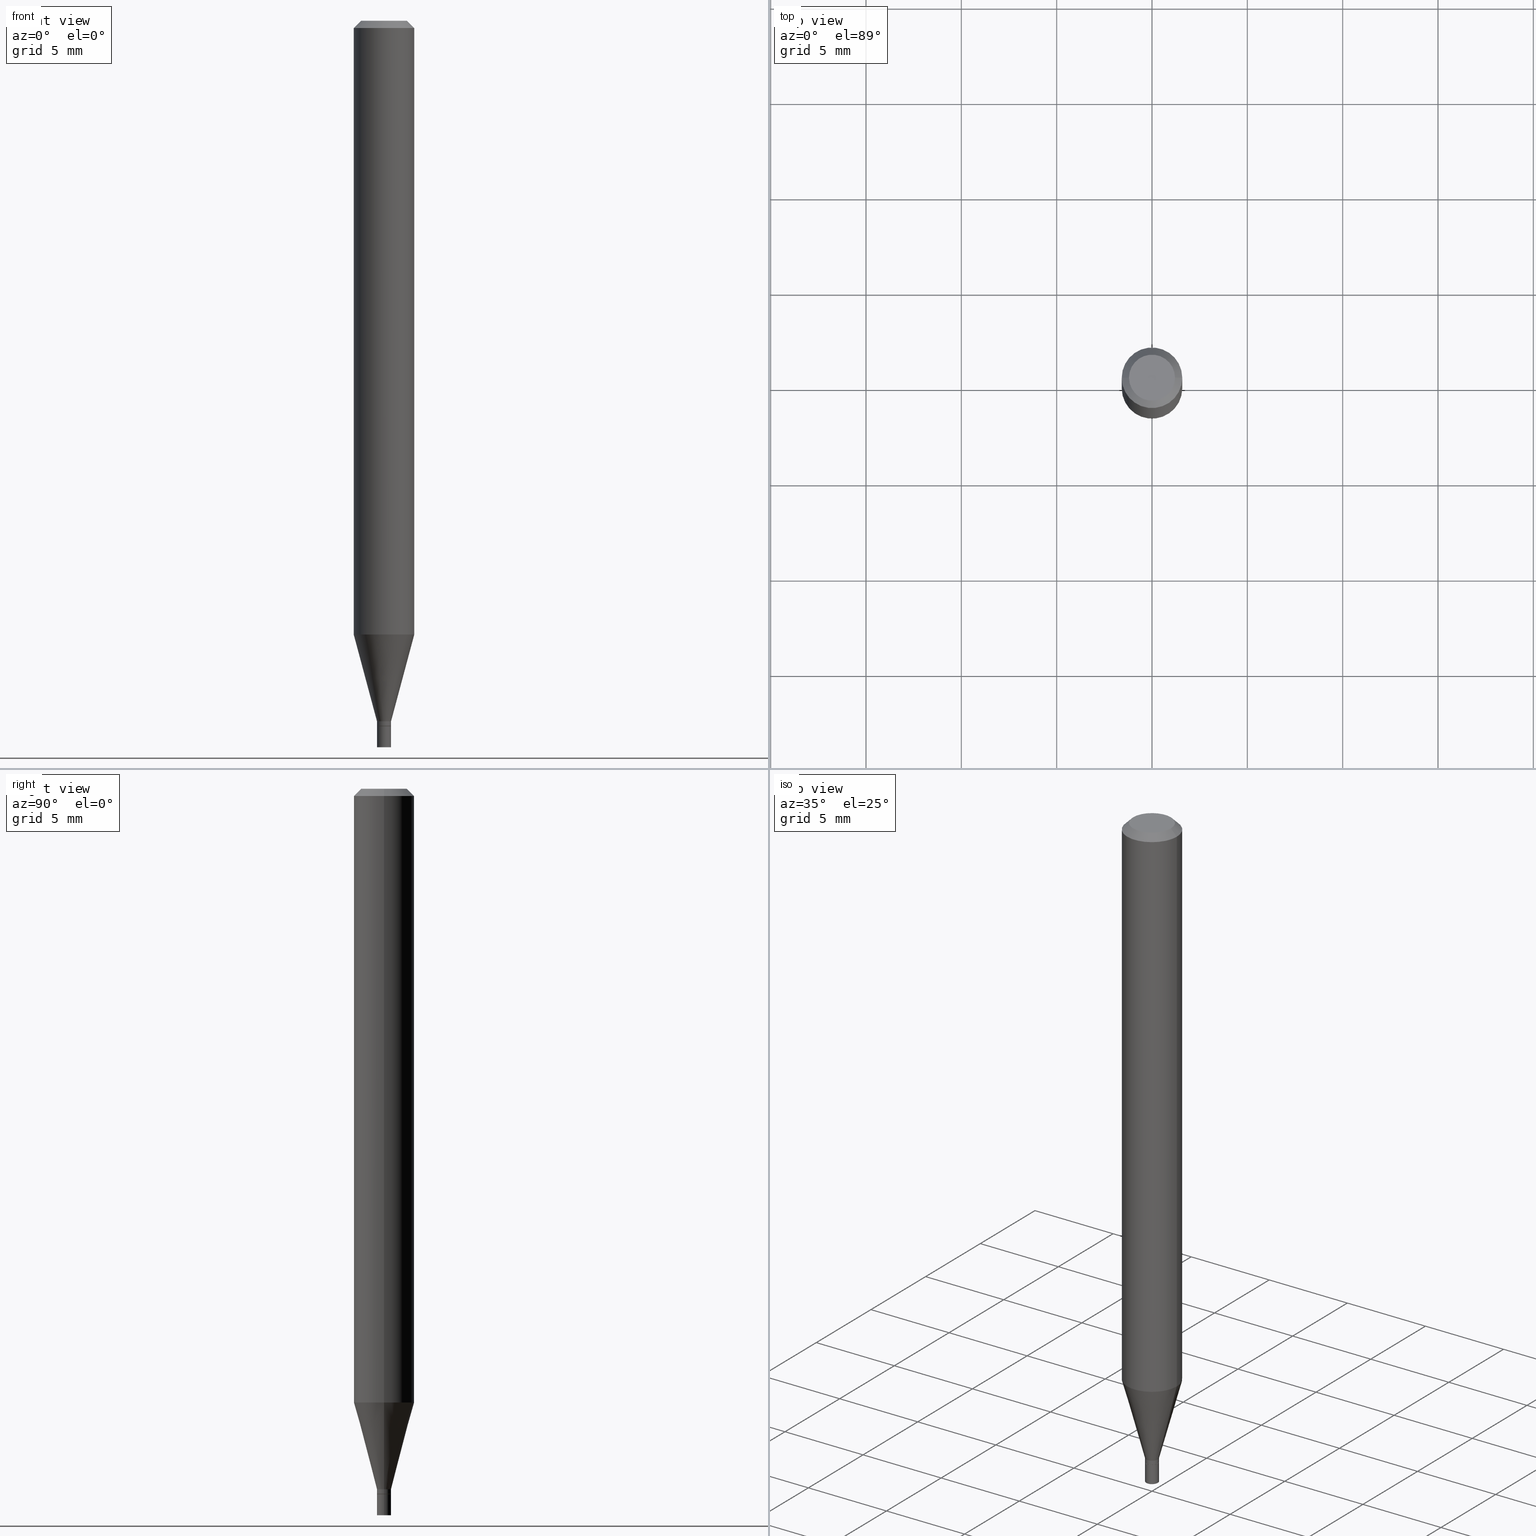
[diagram: canonical four-view strip — front | top / right | iso, engineering-drawing reading convention]
A machine part, canonical four-view strip (front | top / right | iso — engineering-drawing reading convention). The complete STEP part file that produces these views, byte-faithful:
ISO-10303-21;
HEADER;
FILE_DESCRIPTION (( 'STEP AP203' ),
    '1' );
FILE_NAME ('01109.STEP',
    '2024-03-19T22:59:39',
    ( '' ),
    ( '' ),
    'SwSTEP 2.0',
    'SolidWorks 2023',
    '' );
FILE_SCHEMA (( 'CONFIG_CONTROL_DESIGN' ));
ENDSEC;

DATA;
#1 = VECTOR ( 'NONE', #319, 39.37007874015748854 ) ;
#2 = AXIS2_PLACEMENT_3D ( 'NONE', #101, #141, #365 ) ;
#3 = VERTEX_POINT ( 'NONE', #347 ) ;
#4 = EDGE_CURVE ( 'NONE', #76, #3, #94, .T. ) ;
#5 = DIRECTION ( 'NONE',  ( 1.000000000000000000, -6.982962677686262766E-15, 0.000000000000000000 ) ) ;
#6 = APPLICATION_CONTEXT ( 'configuration controlled 3d designs of mechanical parts and assemblies' ) ;
#7 = CONICAL_SURFACE ( 'NONE', #322, 0.01449999999999992441, 0.2617993877991501295 ) ;
#8 = ORIENTED_EDGE ( 'NONE', *, *, #82, .T. ) ;
#9 = VECTOR ( 'NONE', #388, 39.37007874015747433 ) ;
#10 = DIRECTION ( 'NONE',  ( -2.445468806185136597E-29, 3.491481338843145583E-15, 1.000000000000000000 ) ) ;
#11 = ADVANCED_FACE ( 'NONE', ( #342 ), #92, .T. ) ;
#12 = DIRECTION ( 'NONE',  ( -2.445468806185136597E-29, 3.491481338843145583E-15, 1.000000000000000000 ) ) ;
#13 = EDGE_LOOP ( 'NONE', ( #446, #403, #330, #148 ) ) ;
#14 = FACE_OUTER_BOUND ( 'NONE', #332, .T. ) ;
#15 = DIRECTION ( 'NONE',  ( -2.445468806185136597E-29, 3.491481338843145583E-15, 1.000000000000000000 ) ) ;
#16 = DIRECTION ( 'NONE',  ( 1.000000000000000000, -6.982962677686269077E-15, 0.000000000000000000 ) ) ;
#17 = CIRCLE ( 'NONE', #188, 0.01400000000000000203 ) ;
#18 =( GEOMETRIC_REPRESENTATION_CONTEXT ( 3 ) GLOBAL_UNCERTAINTY_ASSIGNED_CONTEXT ( ( #289 ) ) GLOBAL_UNIT_ASSIGNED_CONTEXT ( ( #207, #172, #233 ) ) REPRESENTATION_CONTEXT ( 'NONE', 'WORKASPACE' ) );
#19 = ADVANCED_FACE ( 'NONE', ( #201 ), #7, .T. ) ;
#20 = DIRECTION ( 'NONE',  ( -2.445468806185136877E-29, 3.491481338843145188E-15, 1.000000000000000000 ) ) ;
#21 = CLOSED_SHELL ( 'NONE', ( #26, #91, #370, #228, #40, #19, #433, #78, #465, #134, #204, #445 ) ) ;
#22 = DIRECTION ( 'NONE',  ( -2.445468806185136597E-29, 3.491481338843145583E-15, 1.000000000000000000 ) ) ;
#23 = AXIS2_PLACEMENT_3D ( 'NONE', #337, #15, #164 ) ;
#24 = MECHANICAL_CONTEXT ( 'NONE', #6, 'mechanical' ) ;
#25 = LINE ( 'NONE', #456, #189 ) ;
#26 = ADVANCED_FACE ( 'NONE', ( #126 ), #417, .T. ) ;
#27 = PRODUCT_DEFINITION_SHAPE ( 'NONE', 'NONE',  #401 ) ;
#28 = DIRECTION ( 'NONE',  ( -2.445468806185136877E-29, 3.491481338843145188E-15, 1.000000000000000000 ) ) ;
#29 = CARTESIAN_POINT ( 'NONE',  ( 3.668203209277705088E-31, -5.237222008264718399E-17, -0.01499999999999999944 ) ) ;
#30 = SHAPE_DEFINITION_REPRESENTATION ( #27, #236 ) ;
#31 = LINE ( 'NONE', #460, #461 ) ;
#32 = PERSON ( 'UNSPECIFIED', 'UNSPECIFIED', 'UNSPECIFIED', ('UNSPECIFIED'), ('UNSPECIFIED'), ('UNSPECIFIED') ) ;
#33 = DATE_AND_TIME ( #213, #77 ) ;
#34 = CIRCLE ( 'NONE', #103, 0.04749999999999999362 ) ;
#35 = DIRECTION ( 'NONE',  ( -2.445468806185136597E-29, 3.491481338843145583E-15, 1.000000000000000000 ) ) ;
#36 = DIRECTION ( 'NONE',  ( 1.000000000000000000, -6.982962677686269077E-15, 0.000000000000000000 ) ) ;
#37 = EDGE_CURVE ( 'NONE', #44, #143, #453, .T. ) ;
#38 = ORIENTED_EDGE ( 'NONE', *, *, #328, .F. ) ;
#39 = AXIS2_PLACEMENT_3D ( 'NONE', #334, #89, #16 ) ;
#40 = ADVANCED_FACE ( 'NONE', ( #140 ), #135, .T. ) ;
#41 = ORIENTED_EDGE ( 'NONE', *, *, #37, .F. ) ;
#42 = CARTESIAN_POINT ( 'NONE',  ( 3.668203209277705088E-31, -5.237222008264718399E-17, -0.01499999999999999944 ) ) ;
#43 = FACE_OUTER_BOUND ( 'NONE', #174, .T. ) ;
#44 = VERTEX_POINT ( 'NONE', #296 ) ;
#45 = EDGE_CURVE ( 'NONE', #214, #154, #17, .T. ) ;
#46 = DIRECTION ( 'NONE',  ( -2.445468806185136597E-29, 3.491481338843145583E-15, 1.000000000000000000 ) ) ;
#47 = AXIS2_PLACEMENT_3D ( 'NONE', #383, #12, #159 ) ;
#48 = AXIS2_PLACEMENT_3D ( 'NONE', #301, #120, #128 ) ;
#49 = VECTOR ( 'NONE', #180, 39.37007874015747433 ) ;
#50 = CARTESIAN_POINT ( 'NONE',  ( 0.01449999999999992441, -5.151680715463060558E-15, -1.446499999999999897 ) ) ;
#51 = CARTESIAN_POINT ( 'NONE',  ( 3.668203209277705088E-31, -5.237222008264718399E-17, -0.01499999999999999944 ) ) ;
#52 = LINE ( 'NONE', #344, #367 ) ;
#53 = DIRECTION ( 'NONE',  ( 2.445468806185136597E-29, -3.491481338843145583E-15, -1.000000000000000000 ) ) ;
#54 = DIRECTION ( 'NONE',  ( -2.445468806185136597E-29, 3.491481338843145583E-15, 1.000000000000000000 ) ) ;
#55 = CC_DESIGN_DATE_AND_TIME_ASSIGNMENT ( #248, #419, ( #80 ) ) ;
#56 = CLOSED_SHELL ( 'NONE', ( #11, #451, #179, #169 ) ) ;
#57 = AXIS2_PLACEMENT_3D ( 'NONE', #280, #395, #72 ) ;
#58 = CYLINDRICAL_SURFACE ( 'NONE', #229, 0.01450000000000000074 ) ;
#59 = ORGANIZATION ( 'UNSPECIFIED', 'UNSPECIFIED', '' ) ;
#60 = LENGTH_MEASURE_WITH_UNIT ( LENGTH_MEASURE( 0.02539999999999999897 ), #163 );
#61 = DIRECTION ( 'NONE',  ( -2.445468806185136597E-29, 3.491481338843145583E-15, 1.000000000000000000 ) ) ;
#62 = ORIENTED_EDGE ( 'NONE', *, *, #328, .T. ) ;
#63 = CARTESIAN_POINT ( 'NONE',  ( 7.003305027062207074E-45, -9.998863510493265527E-31, -2.863788329398962481E-16 ) ) ;
#64 = APPROVAL ( #177, 'UNSPECIFIED' ) ;
#65 = DIRECTION ( 'NONE',  ( -2.445468806185136597E-29, 3.491481338843145583E-15, 1.000000000000000000 ) ) ;
#66 = AXIS2_PLACEMENT_3D ( 'NONE', #166, #264, #348 ) ;
#67 = PRODUCT_DEFINITION_FORMATION_WITH_SPECIFIED_SOURCE ( 'ANY', '', #195, .NOT_KNOWN. ) ;
#68 = EDGE_LOOP ( 'NONE', ( #122, #193, #87, #150 ) ) ;
#69 = CARTESIAN_POINT ( 'NONE',  ( 3.560602581805559105E-29, -5.083596829355621130E-15, -1.456000000000000183 ) ) ;
#70 = SECURITY_CLASSIFICATION_LEVEL ( 'unclassified' ) ;
#71 = VERTEX_POINT ( 'NONE', #379 ) ;
#72 = DIRECTION ( 'NONE',  ( 1.000000000000000000, -6.982962677686299054E-15, 0.000000000000000000 ) ) ;
#73 = PERSON_AND_ORGANIZATION ( #32, #59 ) ;
#74 = EDGE_CURVE ( 'NONE', #363, #210, #118, .T. ) ;
#75 = DIRECTION ( 'NONE',  ( 0.7071067811865642261, -2.468850131082431399E-15, 0.7071067811865309194 ) ) ;
#76 = VERTEX_POINT ( 'NONE', #50 ) ;
#77 = LOCAL_TIME ( 18, 59, 39.00000000000000000, #366 ) ;
#78 = ADVANCED_FACE ( 'NONE', ( #260 ), #311, .T. ) ;
#79 = CIRCLE ( 'NONE', #39, 0.01449999999999992441 ) ;
#80 = SECURITY_CLASSIFICATION ( '', '', #70 ) ;
#81 = FACE_OUTER_BOUND ( 'NONE', #430, .T. ) ;
#82 = EDGE_CURVE ( 'NONE', #339, #143, #313, .T. ) ;
#83 = LINE ( 'NONE', #235, #119 ) ;
#84 = DIRECTION ( 'NONE',  ( 1.000000000000000000, -6.982962677686266711E-15, 0.000000000000000000 ) ) ;
#85 = DIRECTION ( 'NONE',  ( -2.438088387897960049E-29, 3.491481338843145188E-15, 1.000000000000000000 ) ) ;
#86 = AXIS2_PLACEMENT_3D ( 'NONE', #250, #35, #261 ) ;
#87 = ORIENTED_EDGE ( 'NONE', *, *, #255, .T. ) ;
#88 = LOCAL_TIME ( 18, 59, 39.00000000000000000, #361 ) ;
#89 = DIRECTION ( 'NONE',  ( -2.445468806185136597E-29, 3.491481338843145583E-15, 1.000000000000000000 ) ) ;
#90 = DIRECTION ( 'NONE',  ( 2.438088387897960049E-29, -3.491481338843145188E-15, -1.000000000000000000 ) ) ;
#91 = ADVANCED_FACE ( 'NONE', ( #270 ), #284, .T. ) ;
#92 = CYLINDRICAL_SURFACE ( 'NONE', #47, 0.01450000000000000074 ) ;
#93 = FACE_OUTER_BOUND ( 'NONE', #170, .T. ) ;
#94 = CIRCLE ( 'NONE', #86, 0.01449999999999992441 ) ;
#95 = AXIS2_PLACEMENT_3D ( 'NONE', #356, #178, #282 ) ;
#96 = CARTESIAN_POINT ( 'NONE',  ( 0.000000000000000000, 0.000000000000000000, 0.000000000000000000 ) ) ;
#97 = APPROVAL_ROLE ( '' ) ;
#98 = EDGE_CURVE ( 'NONE', #3, #76, #79, .T. ) ;
#99 = CARTESIAN_POINT ( 'NONE',  ( 0.01450000000000000074, -5.338474967091170117E-15, -1.500000000000000222 ) ) ;
#100 = PERSON_AND_ORGANIZATION_ROLE ( 'creator' ) ;
#101 = CARTESIAN_POINT ( 'NONE',  ( 3.668203209277705088E-31, -5.237222008264718399E-17, -0.01499999999999999944 ) ) ;
#102 = DIRECTION ( 'NONE',  ( -2.445468806185136597E-29, 3.491481338843145583E-15, 1.000000000000000000 ) ) ;
#103 = AXIS2_PLACEMENT_3D ( 'NONE', #63, #212, #110 ) ;
#104 = CALENDAR_DATE ( 2024, 19, 3 ) ;
#105 = DIRECTION ( 'NONE',  ( -2.445468806185136877E-29, 3.491481338843145188E-15, 1.000000000000000000 ) ) ;
#106 = DESIGN_CONTEXT ( 'detailed design', #225, 'design' ) ;
#107 = APPROVAL_STATUS ( 'not_yet_approved' ) ;
#108 = VERTEX_POINT ( 'NONE', #299 ) ;
#109 = EDGE_LOOP ( 'NONE', ( #358, #112, #187, #399 ) ) ;
#110 = DIRECTION ( 'NONE',  ( 1.000000000000000000, -6.982962677686267499E-15, 4.852736867747366768E-29 ) ) ;
#111 = ORIENTED_EDGE ( 'NONE', *, *, #121, .T. ) ;
#112 = ORIENTED_EDGE ( 'NONE', *, *, #315, .T. ) ;
#113 = CIRCLE ( 'NONE', #57, 0.01450000000000000074 ) ;
#114 = AXIS2_PLACEMENT_3D ( 'NONE', #335, #46, #125 ) ;
#115 = ORIENTED_EDGE ( 'NONE', *, *, #426, .F. ) ;
#116 = EDGE_CURVE ( 'NONE', #154, #214, #175, .T. ) ;
#117 = EDGE_LOOP ( 'NONE', ( #221, #155 ) ) ;
#118 = CIRCLE ( 'NONE', #48, 0.06250000000000000000 ) ;
#119 = VECTOR ( 'NONE', #165, 39.37007874015748143 ) ;
#120 = DIRECTION ( 'NONE',  ( -2.445468806185136597E-29, 3.491481338843145583E-15, 1.000000000000000000 ) ) ;
#121 = EDGE_CURVE ( 'NONE', #210, #339, #83, .T. ) ;
#122 = ORIENTED_EDGE ( 'NONE', *, *, #186, .F. ) ;
#123 = CARTESIAN_POINT ( 'NONE',  ( 3.561825316208651906E-29, -5.085342570025042633E-15, -1.456500000000000128 ) ) ;
#124 = DIRECTION ( 'NONE',  ( 1.000000000000000000, -6.982962677686266711E-15, 4.876176775795935793E-29 ) ) ;
#125 = DIRECTION ( 'NONE',  ( 1.000000000000000000, -6.982962677686266711E-15, 4.876176775795935793E-29 ) ) ;
#126 = FACE_OUTER_BOUND ( 'NONE', #262, .T. ) ;
#127 = ORIENTED_EDGE ( 'NONE', *, *, #74, .T. ) ;
#128 = DIRECTION ( 'NONE',  ( 1.000000000000000000, -6.982962677686262766E-15, 0.000000000000000000 ) ) ;
#129 = VECTOR ( 'NONE', #28, 39.37007874015748143 ) ;
#130 = CARTESIAN_POINT ( 'NONE',  ( -0.01450000000000000074, -5.058253592459665786E-15, -1.456500000000000128 ) ) ;
#131 = EDGE_CURVE ( 'NONE', #154, #291, #439, .T. ) ;
#132 = ORIENTED_EDGE ( 'NONE', *, *, #290, .T. ) ;
#133 = CARTESIAN_POINT ( 'NONE',  ( 3.316907271900976096E-16, 0.04749999999999999362, -3.090347800649974958E-16 ) ) ;
#134 = ADVANCED_FACE ( 'NONE', ( #303 ), #267, .F. ) ;
#135 = CONICAL_SURFACE ( 'NONE', #400, 0.01449999999999992441, 0.2617993877991501295 ) ;
#136 = AXIS2_PLACEMENT_3D ( 'NONE', #317, #22, #185 ) ;
#137 = APPLICATION_PROTOCOL_DEFINITION ( 'international standard', 'config_control_design', 1994, #225 ) ;
#138 = DIRECTION ( 'NONE',  ( 1.000000000000000000, -6.982962677686299054E-15, 0.000000000000000000 ) ) ;
#139 = PERSON_AND_ORGANIZATION ( #32, #59 ) ;
#140 = FACE_OUTER_BOUND ( 'NONE', #109, .T. ) ;
#141 = DIRECTION ( 'NONE',  ( 2.445468806185136597E-29, -3.491481338843145583E-15, -1.000000000000000000 ) ) ;
#142 = APPROVAL_ROLE ( '' ) ;
#143 = VERTEX_POINT ( 'NONE', #449 ) ;
#144 = CARTESIAN_POINT ( 'NONE',  ( 0.01400000000000000203, -5.183104047512649988E-15, -1.456500000000000128 ) ) ;
#145 = AXIS2_PLACEMENT_3D ( 'NONE', #415, #90, #272 ) ;
#146 = CC_DESIGN_PERSON_AND_ORGANIZATION_ASSIGNMENT ( #389, #100, ( #401 ) ) ;
#147 = CALENDAR_DATE ( 2024, 19, 3 ) ;
#148 = ORIENTED_EDGE ( 'NONE', *, *, #351, .F. ) ;
#149 = FACE_OUTER_BOUND ( 'NONE', #234, .T. ) ;
#150 = ORIENTED_EDGE ( 'NONE', *, *, #98, .F. ) ;
#151 = ORIENTED_EDGE ( 'NONE', *, *, #351, .T. ) ;
#152 = CC_DESIGN_DATE_AND_TIME_ASSIGNMENT ( #424, #241, ( #401 ) ) ;
#153 = CIRCLE ( 'NONE', #418, 0.01450000000000000074 ) ;
#154 = VERTEX_POINT ( 'NONE', #411 ) ;
#155 = ORIENTED_EDGE ( 'NONE', *, *, #116, .F. ) ;
#156 = CIRCLE ( 'NONE', #136, 0.01450000000000000074 ) ;
#157 = EDGE_LOOP ( 'NONE', ( #409, #239, #421, #259 ) ) ;
#158 = CARTESIAN_POINT ( 'NONE',  ( -0.01400000000000000203, -4.985866587018628519E-15, -1.456500000000000128 ) ) ;
#159 = DIRECTION ( 'NONE',  ( 1.000000000000000000, -6.982962677686266711E-15, 4.876176775795935793E-29 ) ) ;
#160 = DIMENSIONAL_EXPONENTS ( 1.000000000000000000, 0.000000000000000000, 0.000000000000000000, 0.000000000000000000, 0.000000000000000000, 0.000000000000000000, 0.000000000000000000 ) ;
#161 = ORIENTED_EDGE ( 'NONE', *, *, #306, .T. ) ;
#162 = DIRECTION ( 'NONE',  ( 1.000000000000000000, -6.982962677686265922E-15, 4.876176775795935793E-29 ) ) ;
#163 =( LENGTH_UNIT ( ) NAMED_UNIT ( * ) SI_UNIT ( $, .METRE. ) );
#164 = DIRECTION ( 'NONE',  ( 1.000000000000000000, -6.982962677686267499E-15, 4.852736867747366768E-29 ) ) ;
#165 = DIRECTION ( 'NONE',  ( -2.445468806185136877E-29, 3.491481338843145188E-15, 1.000000000000000000 ) ) ;
#166 = CARTESIAN_POINT ( 'NONE',  ( 0.000000000000000000, 0.000000000000000000, 0.000000000000000000 ) ) ;
#167 = AXIS2_PLACEMENT_3D ( 'NONE', #271, #85, #302 ) ;
#168 = PLANE ( 'NONE',  #167 ) ;
#169 = ADVANCED_FACE ( 'NONE', ( #81 ), #224, .F. ) ;
#170 = EDGE_LOOP ( 'NONE', ( #231, #375, #336, #341 ) ) ;
#171 = DIRECTION ( 'NONE',  ( -2.445468806185136597E-29, 3.491481338843145583E-15, 1.000000000000000000 ) ) ;
#172 =( NAMED_UNIT ( * ) PLANE_ANGLE_UNIT ( ) SI_UNIT ( $, .RADIAN. ) );
#173 = PERSON_AND_ORGANIZATION_ROLE ( 'creator' ) ;
#174 = EDGE_LOOP ( 'NONE', ( #132, #432, #438, #308 ) ) ;
#175 = CIRCLE ( 'NONE', #345, 0.01400000000000000203 ) ;
#176 = CARTESIAN_POINT ( 'NONE',  ( -0.01449999999999992441, -4.980568132670406905E-15, -1.456000000000000183 ) ) ;
#177 = APPROVAL_STATUS ( 'not_yet_approved' ) ;
#178 = DIRECTION ( 'NONE',  ( -2.445468806185136597E-29, 3.491481338843145583E-15, 1.000000000000000000 ) ) ;
#179 = ADVANCED_FACE ( 'NONE', ( #385 ), #58, .T. ) ;
#180 = DIRECTION ( 'NONE',  ( -0.2588190451025214611, 5.211531920934551042E-15, 0.9659258262890682012 ) ) ;
#181 = CARTESIAN_POINT ( 'NONE',  ( 0.000000000000000000, 0.000000000000000000, 0.000000000000000000 ) ) ;
#182 = CARTESIAN_POINT ( 'NONE',  ( 3.560602581805559105E-29, -5.083596829355621130E-15, -1.456000000000000183 ) ) ;
#183 = AXIS2_PLACEMENT_3D ( 'NONE', #51, #293, #84 ) ;
#184 = DATE_AND_TIME ( #318, #323 ) ;
#185 = DIRECTION ( 'NONE',  ( 1.000000000000000000, -6.982962677686299054E-15, 0.000000000000000000 ) ) ;
#186 = EDGE_CURVE ( 'NONE', #291, #3, #416, .T. ) ;
#187 = ORIENTED_EDGE ( 'NONE', *, *, #290, .F. ) ;
#188 = AXIS2_PLACEMENT_3D ( 'NONE', #226, #442, #376 ) ;
#189 = VECTOR ( 'NONE', #105, 39.37007874015748143 ) ;
#190 = ORIENTED_EDGE ( 'NONE', *, *, #298, .F. ) ;
#191 = ORIENTED_EDGE ( 'NONE', *, *, #396, .T. ) ;
#192 = DIRECTION ( 'NONE',  ( -2.445468806185136597E-29, 3.491481338843145583E-15, 1.000000000000000000 ) ) ;
#193 = ORIENTED_EDGE ( 'NONE', *, *, #377, .T. ) ;
#194 = DIRECTION ( 'NONE',  ( -0.7071067811865642261, 7.493145998870414114E-15, 0.7071067811865309194 ) ) ;
#195 = PRODUCT ( '01109', '01109', '', ( #24 ) ) ;
#196 = DIRECTION ( 'NONE',  ( -2.445468806185136877E-29, 3.491481338843145188E-15, 1.000000000000000000 ) ) ;
#197 = CC_DESIGN_PERSON_AND_ORGANIZATION_ASSIGNMENT ( #216, #283, ( #67 ) ) ;
#198 = MANIFOLD_SOLID_BREP ( 'Body-Move/Copy2[2]', #21 ) ;
#199 = CARTESIAN_POINT ( 'NONE',  ( 3.561825316208651906E-29, -5.085342570025042633E-15, -1.456500000000000128 ) ) ;
#200 = CYLINDRICAL_SURFACE ( 'NONE', #66, 0.01449999999999992441 ) ;
#201 = FACE_OUTER_BOUND ( 'NONE', #402, .T. ) ;
#202 = DIRECTION ( 'NONE',  ( 1.000000000000000000, -6.982962677686269077E-15, 0.000000000000000000 ) ) ;
#203 = AXIS2_PLACEMENT_3D ( 'NONE', #29, #463, #286 ) ;
#204 = ADVANCED_FACE ( 'NONE', ( #93 ), #257, .T. ) ;
#205 = ORIENTED_EDGE ( 'NONE', *, *, #396, .F. ) ;
#206 = CARTESIAN_POINT ( 'NONE',  ( 3.561825316208651906E-29, -5.085342570025042633E-15, -1.456500000000000128 ) ) ;
#207 =( CONVERSION_BASED_UNIT ( 'INCH', #60 ) LENGTH_UNIT ( ) NAMED_UNIT ( #160 ) );
#208 = DIRECTION ( 'NONE',  ( 1.000000000000000000, -6.982962677686269077E-15, 0.000000000000000000 ) ) ;
#209 = PERSON_AND_ORGANIZATION ( #32, #59 ) ;
#210 = VERTEX_POINT ( 'NONE', #452 ) ;
#211 = AXIS2_PLACEMENT_3D ( 'NONE', #331, #192, #5 ) ;
#212 = DIRECTION ( 'NONE',  ( -2.445468806185136597E-29, 3.491481338843145583E-15, 1.000000000000000000 ) ) ;
#213 = CALENDAR_DATE ( 2024, 19, 3 ) ;
#214 = VERTEX_POINT ( 'NONE', #269 ) ;
#215 = DIRECTION ( 'NONE',  ( -2.445468806185136597E-29, 3.491481338843145583E-15, 1.000000000000000000 ) ) ;
#216 = PERSON_AND_ORGANIZATION ( #32, #59 ) ;
#217 = LINE ( 'NONE', #243, #129 ) ;
#218 = APPROVAL_ROLE ( '' ) ;
#219 = CARTESIAN_POINT ( 'NONE',  ( 0.000000000000000000, 0.000000000000000000, 0.000000000000000000 ) ) ;
#220 = CC_DESIGN_PERSON_AND_ORGANIZATION_ASSIGNMENT ( #464, #310, ( #195 ) ) ;
#221 = ORIENTED_EDGE ( 'NONE', *, *, #45, .F. ) ;
#222 = CC_DESIGN_APPROVAL ( #64, ( #67 ) ) ;
#223 = APPROVAL ( #274, 'UNSPECIFIED' ) ;
#224 = PLANE ( 'NONE',  #145 ) ;
#225 = APPLICATION_CONTEXT ( 'configuration controlled 3d designs of mechanical parts and assemblies' ) ;
#226 = CARTESIAN_POINT ( 'NONE',  ( 3.561825316208651906E-29, -5.085342570025042633E-15, -1.456500000000000128 ) ) ;
#227 = LINE ( 'NONE', #340, #9 ) ;
#228 = ADVANCED_FACE ( 'NONE', ( #43 ), #407, .T. ) ;
#229 = AXIS2_PLACEMENT_3D ( 'NONE', #96, #171, #455 ) ;
#230 = CARTESIAN_POINT ( 'NONE',  ( 0.04749999999999999362, -4.035134999187584047E-16, -2.863788329398937336E-16 ) ) ;
#231 = ORIENTED_EDGE ( 'NONE', *, *, #131, .F. ) ;
#232 = DIRECTION ( 'NONE',  ( 1.000000000000000000, -6.982962677686262766E-15, 0.000000000000000000 ) ) ;
#233 =( NAMED_UNIT ( * ) SI_UNIT ( $, .STERADIAN. ) SOLID_ANGLE_UNIT ( ) );
#234 = EDGE_LOOP ( 'NONE', ( #437, #127, #111, #190 ) ) ;
#235 = CARTESIAN_POINT ( 'NONE',  ( 0.06250000000000000000, -4.364351673553916694E-16, 3.047610484872459871E-30 ) ) ;
#236 = ADVANCED_BREP_SHAPE_REPRESENTATION ( '01109', ( #359, #198, #314 ), #18 ) ;
#237 = CARTESIAN_POINT ( 'NONE',  ( 0.000000000000000000, 0.000000000000000000, 0.000000000000000000 ) ) ;
#238 = VECTOR ( 'NONE', #194, 39.37007874015748143 ) ;
#239 = ORIENTED_EDGE ( 'NONE', *, *, #258, .F. ) ;
#240 = LOCAL_TIME ( 18, 59, 39.00000000000000000, #390 ) ;
#241 = DATE_TIME_ROLE ( 'creation_date' ) ;
#242 = DIRECTION ( 'NONE',  ( -2.445468806185136877E-29, 3.491481338843145188E-15, 1.000000000000000000 ) ) ;
#243 = CARTESIAN_POINT ( 'NONE',  ( 0.01450000000000000074, -1.012529588264508678E-16, 7.070456324904107110E-31 ) ) ;
#244 = PERSON_AND_ORGANIZATION_ROLE ( 'classification_officer' ) ;
#245 = CC_DESIGN_PERSON_AND_ORGANIZATION_ASSIGNMENT ( #326, #244, ( #80 ) ) ;
#246 = COORDINATED_UNIVERSAL_TIME_OFFSET ( 5, 0, .BEHIND. ) ;
#247 = CARTESIAN_POINT ( 'NONE',  ( 3.561825316208651906E-29, -5.085342570025042633E-15, -1.456500000000000128 ) ) ;
#248 = DATE_AND_TIME ( #104, #387 ) ;
#249 = CARTESIAN_POINT ( 'NONE',  ( 3.099293164162429184E-29, -4.424969240625031786E-15, -1.267361561236694190 ) ) ;
#250 = CARTESIAN_POINT ( 'NONE',  ( 3.537370628146800361E-29, -5.050427756636610195E-15, -1.446499999999999897 ) ) ;
#251 = DIRECTION ( 'NONE',  ( 0.7071067811865542341, -7.319954787623278133E-15, -0.7071067811865405783 ) ) ;
#252 = VERTEX_POINT ( 'NONE', #230 ) ;
#253 = CIRCLE ( 'NONE', #380, 0.06250000000000000000 ) ;
#254 = ORIENTED_EDGE ( 'NONE', *, *, #131, .T. ) ;
#255 = EDGE_CURVE ( 'NONE', #71, #76, #381, .T. ) ;
#256 = DIRECTION ( 'NONE',  ( -2.438088387897960049E-29, 3.491481338843145188E-15, 1.000000000000000000 ) ) ;
#257 = CONICAL_SURFACE ( 'NONE', #393, 0.01400000000000000203, 0.7853981633974718157 ) ;
#258 = EDGE_CURVE ( 'NONE', #44, #252, #386, .T. ) ;
#259 = ORIENTED_EDGE ( 'NONE', *, *, #298, .T. ) ;
#260 = FACE_OUTER_BOUND ( 'NONE', #157, .T. ) ;
#261 = DIRECTION ( 'NONE',  ( 1.000000000000000000, -6.982962677686269077E-15, 0.000000000000000000 ) ) ;
#262 = EDGE_LOOP ( 'NONE', ( #295, #266, #292, #444 ) ) ;
#263 = EDGE_CURVE ( 'NONE', #108, #443, #25, .T. ) ;
#264 = DIRECTION ( 'NONE',  ( -2.445468806185136597E-29, 3.491481338843145583E-15, 1.000000000000000000 ) ) ;
#265 = ORIENTED_EDGE ( 'NONE', *, *, #440, .T. ) ;
#266 = ORIENTED_EDGE ( 'NONE', *, *, #186, .T. ) ;
#267 = PLANE ( 'NONE',  #378 ) ;
#268 = AXIS2_PLACEMENT_3D ( 'NONE', #219, #368, #124 ) ;
#269 = CARTESIAN_POINT ( 'NONE',  ( 0.01400000000000000203, -5.183104047512649988E-15, -1.456500000000000128 ) ) ;
#270 = FACE_OUTER_BOUND ( 'NONE', #454, .T. ) ;
#271 = CARTESIAN_POINT ( 'NONE',  ( 3.584916967085606921E-29, -5.356492647442320375E-15, -1.500000000000000222 ) ) ;
#272 = DIRECTION ( 'NONE',  ( -1.000000000000000000, 6.982962677686265922E-15, -4.876176775795935793E-29 ) ) ;
#273 = ORIENTED_EDGE ( 'NONE', *, *, #315, .F. ) ;
#274 = APPROVAL_STATUS ( 'not_yet_approved' ) ;
#275 = AXIS2_PLACEMENT_3D ( 'NONE', #237, #312, #278 ) ;
#276 = AXIS2_PLACEMENT_3D ( 'NONE', #42, #53, #406 ) ;
#277 = APPROVAL_DATE_TIME ( #33, #223 ) ;
#278 = DIRECTION ( 'NONE',  ( 1.000000000000000000, -6.982962677686266711E-15, 4.876176775795935232E-29 ) ) ;
#279 = CC_DESIGN_PERSON_AND_ORGANIZATION_ASSIGNMENT ( #457, #173, ( #67 ) ) ;
#280 = CARTESIAN_POINT ( 'NONE',  ( 3.561825316208651906E-29, -5.085342570025042633E-15, -1.456500000000000128 ) ) ;
#281 = EDGE_LOOP ( 'NONE', ( #285, #394 ) ) ;
#282 = DIRECTION ( 'NONE',  ( 1.000000000000000000, -6.982962677686299054E-15, 0.000000000000000000 ) ) ;
#283 = PERSON_AND_ORGANIZATION_ROLE ( 'design_supplier' ) ;
#284 = CONICAL_SURFACE ( 'NONE', #211, 0.01400000000000000203, 0.7853981633974718157 ) ;
#285 = ORIENTED_EDGE ( 'NONE', *, *, #413, .F. ) ;
#286 = DIRECTION ( 'NONE',  ( 1.000000000000000000, -6.982962677686266711E-15, 0.000000000000000000 ) ) ;
#287 = EDGE_CURVE ( 'NONE', #71, #291, #404, .T. ) ;
#288 = AXIS2_PLACEMENT_3D ( 'NONE', #69, #102, #398 ) ;
#289 = UNCERTAINTY_MEASURE_WITH_UNIT (LENGTH_MEASURE( 1.000000000000000082E-05 ), #207, 'distance_accuracy_value', 'NONE');
#290 = EDGE_CURVE ( 'NONE', #210, #363, #253, .T. ) ;
#291 = VERTEX_POINT ( 'NONE', #176 ) ;
#292 = ORIENTED_EDGE ( 'NONE', *, *, #4, .F. ) ;
#293 = DIRECTION ( 'NONE',  ( -2.445468806185136597E-29, 3.491481338843145583E-15, 1.000000000000000000 ) ) ;
#294 = ORIENTED_EDGE ( 'NONE', *, *, #287, .F. ) ;
#295 = ORIENTED_EDGE ( 'NONE', *, *, #287, .T. ) ;
#296 = CARTESIAN_POINT ( 'NONE',  ( -0.04749999999999999362, 3.578768372314205575E-16, -2.863788329398987133E-16 ) ) ;
#297 = CIRCLE ( 'NONE', #95, 0.01450000000000000074 ) ;
#298 = EDGE_CURVE ( 'NONE', #143, #339, #355, .T. ) ;
#299 = CARTESIAN_POINT ( 'NONE',  ( -0.01450000000000000074, -5.058253592459665786E-15, -1.500000000000000222 ) ) ;
#300 = ORIENTED_EDGE ( 'NONE', *, *, #343, .T. ) ;
#301 = CARTESIAN_POINT ( 'NONE',  ( 3.099293164162429184E-29, -4.424969240625031786E-15, -1.267361561236694190 ) ) ;
#302 = DIRECTION ( 'NONE',  ( 1.000000000000000000, -6.982962677686265922E-15, 4.876176775795935793E-29 ) ) ;
#303 = FACE_OUTER_BOUND ( 'NONE', #117, .T. ) ;
#304 = FACE_OUTER_BOUND ( 'NONE', #68, .T. ) ;
#305 = VECTOR ( 'NONE', #196, 39.37007874015748143 ) ;
#306 = EDGE_CURVE ( 'NONE', #108, #338, #156, .T. ) ;
#307 = PLANE ( 'NONE',  #428 ) ;
#308 = ORIENTED_EDGE ( 'NONE', *, *, #121, .F. ) ;
#309 = DIRECTION ( 'NONE',  ( 1.000000000000000000, -6.982962677686262766E-15, 0.000000000000000000 ) ) ;
#310 = PERSON_AND_ORGANIZATION_ROLE ( 'design_owner' ) ;
#311 = CONICAL_SURFACE ( 'NONE', #276, 0.06250000000000000000, 0.7853981633974579379 ) ;
#312 = DIRECTION ( 'NONE',  ( -2.445468806185136597E-29, 3.491481338843145583E-15, 1.000000000000000000 ) ) ;
#313 = CIRCLE ( 'NONE', #183, 0.06250000000000000000 ) ;
#314 = AXIS2_PLACEMENT_3D ( 'NONE', #181, #353, #352 ) ;
#315 = EDGE_CURVE ( 'NONE', #3, #363, #321, .T. ) ;
#316 = CC_DESIGN_SECURITY_CLASSIFICATION ( #80, ( #67 ) ) ;
#317 = CARTESIAN_POINT ( 'NONE',  ( 3.668203209277704895E-29, -5.237222008264718177E-15, -1.500000000000000222 ) ) ;
#318 = CALENDAR_DATE ( 2024, 19, 3 ) ;
#319 = DIRECTION ( 'NONE',  ( -0.7071067811865542341, 2.468850131082328058E-15, -0.7071067811865405783 ) ) ;
#320 = FACE_OUTER_BOUND ( 'NONE', #369, .T. ) ;
#321 = LINE ( 'NONE', #397, #49 ) ;
#322 = AXIS2_PLACEMENT_3D ( 'NONE', #384, #54, #202 ) ;
#323 = LOCAL_TIME ( 18, 59, 39.00000000000000000, #422 ) ;
#324 = DIRECTION ( 'NONE',  ( 1.000000000000000000, -6.982962677686262766E-15, 0.000000000000000000 ) ) ;
#325 = ORIENTED_EDGE ( 'NONE', *, *, #45, .T. ) ;
#326 = PERSON_AND_ORGANIZATION ( #32, #59 ) ;
#327 = ORIENTED_EDGE ( 'NONE', *, *, #74, .F. ) ;
#328 = EDGE_CURVE ( 'NONE', #443, #382, #153, .T. ) ;
#329 = CC_DESIGN_APPROVAL ( #364, ( #80 ) ) ;
#330 = ORIENTED_EDGE ( 'NONE', *, *, #349, .F. ) ;
#331 = CARTESIAN_POINT ( 'NONE',  ( 3.561825316208651906E-29, -5.085342570025042633E-15, -1.456500000000000128 ) ) ;
#332 = EDGE_LOOP ( 'NONE', ( #408, #191 ) ) ;
#333 = ORIENTED_EDGE ( 'NONE', *, *, #349, .T. ) ;
#334 = CARTESIAN_POINT ( 'NONE',  ( 3.537370628146800361E-29, -5.050427756636610195E-15, -1.446499999999999897 ) ) ;
#335 = CARTESIAN_POINT ( 'NONE',  ( 0.000000000000000000, 0.000000000000000000, 0.000000000000000000 ) ) ;
#336 = ORIENTED_EDGE ( 'NONE', *, *, #426, .T. ) ;
#337 = CARTESIAN_POINT ( 'NONE',  ( 7.003305027062207074E-45, -9.998863510493265527E-31, -2.863788329398962481E-16 ) ) ;
#338 = VERTEX_POINT ( 'NONE', #99 ) ;
#339 = VERTEX_POINT ( 'NONE', #458 ) ;
#340 = CARTESIAN_POINT ( 'NONE',  ( 0.01449999999999992441, -5.151680715463060558E-15, -1.446499999999999897 ) ) ;
#341 = ORIENTED_EDGE ( 'NONE', *, *, #377, .F. ) ;
#342 = FACE_OUTER_BOUND ( 'NONE', #13, .T. ) ;
#343 = EDGE_CURVE ( 'NONE', #252, #339, #31, .T. ) ;
#344 = CARTESIAN_POINT ( 'NONE',  ( -0.06250000000000000000, 4.440892098500626162E-16, -3.074334431409316114E-30 ) ) ;
#345 = AXIS2_PLACEMENT_3D ( 'NONE', #123, #10, #232 ) ;
#346 = CARTESIAN_POINT ( 'NONE',  ( -0.01449999999999992441, 1.030286966852139898E-16, -7.132455880869575471E-31 ) ) ;
#347 = CARTESIAN_POINT ( 'NONE',  ( -0.01449999999999992441, -4.464139545363182176E-15, -1.446499999999999897 ) ) ;
#348 = DIRECTION ( 'NONE',  ( 1.000000000000000000, -6.982962677686266711E-15, 4.876176775795935232E-29 ) ) ;
#349 = EDGE_CURVE ( 'NONE', #382, #443, #113, .T. ) ;
#350 = DIRECTION ( 'NONE',  ( -2.445468806185136597E-29, 3.491481338843145583E-15, 1.000000000000000000 ) ) ;
#351 = EDGE_CURVE ( 'NONE', #338, #382, #217, .T. ) ;
#352 = DIRECTION ( 'NONE',  ( 1.000000000000000000, 0.000000000000000000, 0.000000000000000000 ) ) ;
#353 = DIRECTION ( 'NONE',  ( 0.000000000000000000, 0.000000000000000000, 1.000000000000000000 ) ) ;
#354 = CARTESIAN_POINT ( 'NONE',  ( -0.06250000000000000000, 3.840629472727444916E-16, -0.01499999999999999944 ) ) ;
#355 = CIRCLE ( 'NONE', #203, 0.06250000000000000000 ) ;
#356 = CARTESIAN_POINT ( 'NONE',  ( 3.668203209277704895E-29, -5.237222008264718177E-15, -1.500000000000000222 ) ) ;
#357 = APPROVAL_DATE_TIME ( #392, #364 ) ;
#358 = ORIENTED_EDGE ( 'NONE', *, *, #4, .T. ) ;
#359 = MANIFOLD_SOLID_BREP ( 'Body-Move/Copy2[1]', #56 ) ;
#360 = CARTESIAN_POINT ( 'NONE',  ( 0.01450000000000000074, -5.186595528851493784E-15, -1.456500000000000128 ) ) ;
#361 = COORDINATED_UNIVERSAL_TIME_OFFSET ( 5, 0, .BEHIND. ) ;
#362 = CARTESIAN_POINT ( 'NONE',  ( 3.537370628146800361E-29, -5.050427756636610195E-15, -1.446499999999999897 ) ) ;
#363 = VERTEX_POINT ( 'NONE', #423 ) ;
#364 = APPROVAL ( #107, 'UNSPECIFIED' ) ;
#365 = DIRECTION ( 'NONE',  ( -1.000000000000000000, 6.982962677686266711E-15, 0.000000000000000000 ) ) ;
#366 = COORDINATED_UNIVERSAL_TIME_OFFSET ( 5, 0, .BEHIND. ) ;
#367 = VECTOR ( 'NONE', #20, 39.37007874015748143 ) ;
#368 = DIRECTION ( 'NONE',  ( -2.445468806185136597E-29, 3.491481338843145583E-15, 1.000000000000000000 ) ) ;
#369 = EDGE_LOOP ( 'NONE', ( #205, #300, #8, #41 ) ) ;
#370 = ADVANCED_FACE ( 'NONE', ( #320 ), #441, .T. ) ;
#371 = EDGE_LOOP ( 'NONE', ( #414, #161, #151, #38 ) ) ;
#372 = AXIS2_PLACEMENT_3D ( 'NONE', #182, #391, #36 ) ;
#373 = APPROVAL_PERSON_ORGANIZATION ( #209, #64, #142 ) ;
#374 = CARTESIAN_POINT ( 'NONE',  ( 0.01449999999999992441, -1.012529588264503378E-16, 7.070456324904069450E-31 ) ) ;
#375 = ORIENTED_EDGE ( 'NONE', *, *, #116, .T. ) ;
#376 = DIRECTION ( 'NONE',  ( 1.000000000000000000, -6.982962677686262766E-15, 0.000000000000000000 ) ) ;
#377 = EDGE_CURVE ( 'NONE', #291, #71, #448, .T. ) ;
#378 = AXIS2_PLACEMENT_3D ( 'NONE', #199, #256, #162 ) ;
#379 = CARTESIAN_POINT ( 'NONE',  ( 0.01449999999999992441, -5.184849788182071492E-15, -1.456000000000000183 ) ) ;
#380 = AXIS2_PLACEMENT_3D ( 'NONE', #249, #215, #324 ) ;
#381 = LINE ( 'NONE', #374, #305 ) ;
#382 = VERTEX_POINT ( 'NONE', #360 ) ;
#383 = CARTESIAN_POINT ( 'NONE',  ( 0.000000000000000000, 0.000000000000000000, 0.000000000000000000 ) ) ;
#384 = CARTESIAN_POINT ( 'NONE',  ( 3.537370628146800361E-29, -5.050427756636610195E-15, -1.446499999999999897 ) ) ;
#385 = FACE_OUTER_BOUND ( 'NONE', #371, .T. ) ;
#386 = CIRCLE ( 'NONE', #23, 0.04749999999999999362 ) ;
#387 = LOCAL_TIME ( 18, 59, 39.00000000000000000, #246 ) ;
#388 = DIRECTION ( 'NONE',  ( 0.2588190451025214611, 1.565188264969621573E-15, 0.9659258262890682012 ) ) ;
#389 = PERSON_AND_ORGANIZATION ( #32, #59 ) ;
#390 = COORDINATED_UNIVERSAL_TIME_OFFSET ( 5, 0, .BEHIND. ) ;
#391 = DIRECTION ( 'NONE',  ( -2.445468806185136597E-29, 3.491481338843145583E-15, 1.000000000000000000 ) ) ;
#392 = DATE_AND_TIME ( #427, #88 ) ;
#393 = AXIS2_PLACEMENT_3D ( 'NONE', #206, #350, #309 ) ;
#394 = ORIENTED_EDGE ( 'NONE', *, *, #306, .F. ) ;
#395 = DIRECTION ( 'NONE',  ( -2.445468806185136597E-29, 3.491481338843145583E-15, 1.000000000000000000 ) ) ;
#396 = EDGE_CURVE ( 'NONE', #252, #44, #34, .T. ) ;
#397 = CARTESIAN_POINT ( 'NONE',  ( -0.01449999999999992441, -4.947399059951395971E-15, -1.446499999999999897 ) ) ;
#398 = DIRECTION ( 'NONE',  ( 1.000000000000000000, -6.982962677686269077E-15, 0.000000000000000000 ) ) ;
#399 = ORIENTED_EDGE ( 'NONE', *, *, #440, .F. ) ;
#400 = AXIS2_PLACEMENT_3D ( 'NONE', #362, #61, #208 ) ;
#401 = PRODUCT_DEFINITION ( 'UNKNOWN', '', #67, #106 ) ;
#402 = EDGE_LOOP ( 'NONE', ( #273, #466, #265, #327 ) ) ;
#403 = ORIENTED_EDGE ( 'NONE', *, *, #263, .T. ) ;
#404 = CIRCLE ( 'NONE', #288, 0.01449999999999992441 ) ;
#405 = PRODUCT_RELATED_PRODUCT_CATEGORY ( 'detail', '', ( #195 ) ) ;
#406 = DIRECTION ( 'NONE',  ( -1.000000000000000000, 6.982962677686266711E-15, 0.000000000000000000 ) ) ;
#407 = CYLINDRICAL_SURFACE ( 'NONE', #114, 0.06250000000000000000 ) ;
#408 = ORIENTED_EDGE ( 'NONE', *, *, #258, .T. ) ;
#409 = ORIENTED_EDGE ( 'NONE', *, *, #343, .F. ) ;
#410 = VECTOR ( 'NONE', #242, 39.37007874015748143 ) ;
#411 = CARTESIAN_POINT ( 'NONE',  ( -0.01400000000000000203, -4.983217359844518107E-15, -1.456500000000000128 ) ) ;
#412 = DIRECTION ( 'NONE',  ( -1.000000000000000000, 6.982962677686265922E-15, -4.876176775795935793E-29 ) ) ;
#413 = EDGE_CURVE ( 'NONE', #338, #108, #297, .T. ) ;
#414 = ORIENTED_EDGE ( 'NONE', *, *, #263, .F. ) ;
#415 = CARTESIAN_POINT ( 'NONE',  ( 1.012529588264864775E-16, 0.01449999999999491453, -1.456500000000000128 ) ) ;
#416 = LINE ( 'NONE', #346, #410 ) ;
#417 = CYLINDRICAL_SURFACE ( 'NONE', #275, 0.01449999999999992441 ) ;
#418 = AXIS2_PLACEMENT_3D ( 'NONE', #247, #65, #138 ) ;
#419 = DATE_TIME_ROLE ( 'classification_date' ) ;
#420 = APPROVAL_PERSON_ORGANIZATION ( #139, #364, #97 ) ;
#421 = ORIENTED_EDGE ( 'NONE', *, *, #37, .T. ) ;
#422 = COORDINATED_UNIVERSAL_TIME_OFFSET ( 5, 0, .BEHIND. ) ;
#423 = CARTESIAN_POINT ( 'NONE',  ( -0.06249999999999999306, -3.980880030774969170E-15, -1.267361561236694190 ) ) ;
#424 = DATE_AND_TIME ( #147, #240 ) ;
#425 = LINE ( 'NONE', #144, #436 ) ;
#426 = EDGE_CURVE ( 'NONE', #214, #71, #425, .T. ) ;
#427 = CALENDAR_DATE ( 2024, 19, 3 ) ;
#428 = AXIS2_PLACEMENT_3D ( 'NONE', #133, #447, #412 ) ;
#429 = CC_DESIGN_APPROVAL ( #223, ( #401 ) ) ;
#430 = EDGE_LOOP ( 'NONE', ( #333, #62 ) ) ;
#431 = APPROVAL_DATE_TIME ( #184, #64 ) ;
#432 = ORIENTED_EDGE ( 'NONE', *, *, #435, .T. ) ;
#433 = ADVANCED_FACE ( 'NONE', ( #149 ), #434, .T. ) ;
#434 = CYLINDRICAL_SURFACE ( 'NONE', #268, 0.06250000000000000000 ) ;
#435 = EDGE_CURVE ( 'NONE', #363, #143, #52, .T. ) ;
#436 = VECTOR ( 'NONE', #75, 39.37007874015748143 ) ;
#437 = ORIENTED_EDGE ( 'NONE', *, *, #435, .F. ) ;
#438 = ORIENTED_EDGE ( 'NONE', *, *, #82, .F. ) ;
#439 = LINE ( 'NONE', #158, #238 ) ;
#440 = EDGE_CURVE ( 'NONE', #76, #210, #227, .T. ) ;
#441 = CONICAL_SURFACE ( 'NONE', #2, 0.06250000000000000000, 0.7853981633974579379 ) ;
#442 = DIRECTION ( 'NONE',  ( -2.445468806185136597E-29, 3.491481338843145583E-15, 1.000000000000000000 ) ) ;
#443 = VERTEX_POINT ( 'NONE', #130 ) ;
#444 = ORIENTED_EDGE ( 'NONE', *, *, #255, .F. ) ;
#445 = ADVANCED_FACE ( 'NONE', ( #304 ), #200, .T. ) ;
#446 = ORIENTED_EDGE ( 'NONE', *, *, #413, .T. ) ;
#447 = DIRECTION ( 'NONE',  ( 2.438088387897960049E-29, -3.491481338843145188E-15, -1.000000000000000000 ) ) ;
#448 = CIRCLE ( 'NONE', #372, 0.01449999999999992441 ) ;
#449 = CARTESIAN_POINT ( 'NONE',  ( -0.06250000000000000000, -1.794581520503777014E-15, -0.01499999999999999944 ) ) ;
#450 = FACE_OUTER_BOUND ( 'NONE', #281, .T. ) ;
#451 = ADVANCED_FACE ( 'NONE', ( #450 ), #168, .F. ) ;
#452 = CARTESIAN_POINT ( 'NONE',  ( 0.06249999999999999306, -4.861404407980422667E-15, -1.267361561236694190 ) ) ;
#453 = LINE ( 'NONE', #354, #1 ) ;
#454 = EDGE_LOOP ( 'NONE', ( #325, #254, #294, #115 ) ) ;
#455 = DIRECTION ( 'NONE',  ( 1.000000000000000000, -6.982962677686266711E-15, 4.876176775795935793E-29 ) ) ;
#456 = CARTESIAN_POINT ( 'NONE',  ( -0.01450000000000000074, 1.030286966852145322E-16, -7.132455880869613131E-31 ) ) ;
#457 = PERSON_AND_ORGANIZATION ( #32, #59 ) ;
#458 = CARTESIAN_POINT ( 'NONE',  ( 0.06250000000000000000, -4.888073874380388472E-16, -0.01499999999999999944 ) ) ;
#459 = APPLICATION_PROTOCOL_DEFINITION ( 'international standard', 'config_control_design', 1994, #6 ) ;
#460 = CARTESIAN_POINT ( 'NONE',  ( 0.06250000000000000000, -4.811533449433679005E-16, -0.01499999999999999944 ) ) ;
#461 = VECTOR ( 'NONE', #251, 39.37007874015748854 ) ;
#462 = APPROVAL_PERSON_ORGANIZATION ( #73, #223, #218 ) ;
#463 = DIRECTION ( 'NONE',  ( -2.445468806185136597E-29, 3.491481338843145583E-15, 1.000000000000000000 ) ) ;
#464 = PERSON_AND_ORGANIZATION ( #32, #59 ) ;
#465 = ADVANCED_FACE ( 'NONE', ( #14 ), #307, .F. ) ;
#466 = ORIENTED_EDGE ( 'NONE', *, *, #98, .T. ) ;
ENDSEC;
END-ISO-10303-21;
